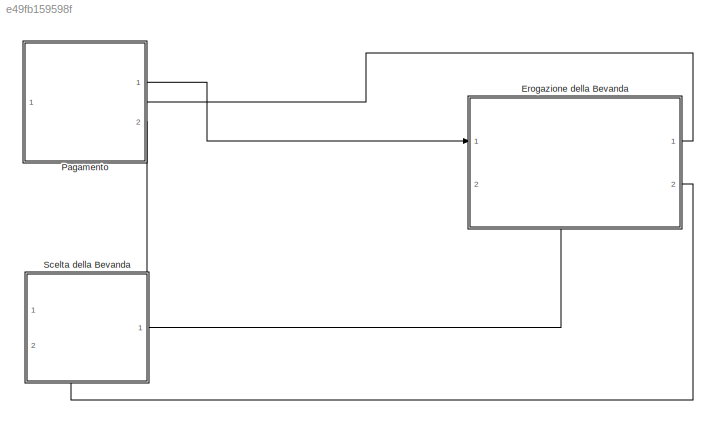
MODEL slx_e49fb159598f
KIND model
CONFIG AbsTol = auto
CONFIG EnableMultiTasking = off
CONFIG FixedStep = auto
CONFIG MaxStep = auto
CONFIG MinStep = auto
CONFIG RelTol = 1e-3
CONFIG SampleTimeConstraint = Unconstrained
CONFIG Solver = VariableStepAuto
CONFIG SolverName = VariableStepAuto
CONFIG StartTime = 0.0
CONFIG StopTime = 10.0
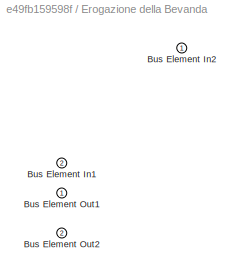
BLOCK [SubSystem] Erogazione della Bevanda
  PortSchema = {"entries":[{"content":{"headerSize":26,"margin":15,"minimumSpacing":25,"sides":[{"content":{"connectorIds":["In1"]},"type":"ConnectorPlacement.EquallySpacedRectSide","uuid":"9001291f-2c01-497d-b978-c9da1a5dfe2f"},{"content":{"connectorIds":["Out1","Out2"],"side":"RIGHT"},"type":"ConnectorPlacement.EquallySpacedRectSide","uuid":"e239534c-f548-484c-979d-c6062b0b6a09"},{"content":{"connectorIds":[],...<+451ch>
  Ports = [2, 2]
  RequestExecContextInheritance = off
BLOCK [Inport] Erogazione della Bevanda/Bus Element In1
  IconDisplay = Port number
  Port = 2
BLOCK [Inport] Erogazione della Bevanda/Bus Element In2
  IconDisplay = Port number
BLOCK [Outport] Erogazione della Bevanda/Bus Element Out1
  IconDisplay = Port number
BLOCK [Outport] Erogazione della Bevanda/Bus Element Out2
  IconDisplay = Port number
  Port = 2
BLOCK [ModelReference] Pagamento
  ModelNameDialog = Pagamento
  ModelReferenceVersion = 1.1
  PortSchema = {"entries":[{"content":{"headerSize":38,"margin":15,"minimumSpacing":25,"sides":[{"content":{"connectorIds":[]},"type":"ConnectorPlacement.EquallySpacedRectSide","uuid":"9001291f-2c01-497d-b978-c9da1a5dfe2f"},{"content":{"connectorIds":["In1","Out1","Out2"],"side":"RIGHT"},"type":"ConnectorPlacement.EquallySpacedRectSide","uuid":"e239534c-f548-484c-979d-c6062b0b6a09"},{"content":{"connectorIds":[]...<+303ch>
  Ports = [1, 2]
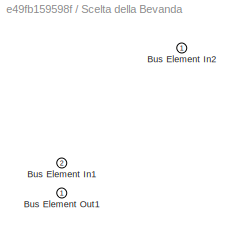
BLOCK [SubSystem] Scelta della Bevanda
  PortSchema = {"entries":[{"content":{"headerSize":26,"margin":15,"minimumSpacing":25,"sides":[{"content":{"connectorIds":[]},"type":"ConnectorPlacement.EquallySpacedRectSide","uuid":"9001291f-2c01-497d-b978-c9da1a5dfe2f"},{"content":{"connectorIds":["In2","Out1"],"side":"RIGHT"},"type":"ConnectorPlacement.EquallySpacedRectSide","uuid":"e239534c-f548-484c-979d-c6062b0b6a09"},{"content":{"connectorIds":[],"side"...<+445ch>
  Ports = [2, 1]
  RequestExecContextInheritance = off
BLOCK [Inport] Scelta della Bevanda/Bus Element In1
  IconDisplay = Port number
  Port = 2
BLOCK [Inport] Scelta della Bevanda/Bus Element In2
  IconDisplay = Port number
BLOCK [Outport] Scelta della Bevanda/Bus Element Out1
  IconDisplay = Port number
LINE Erogazione della Bevanda:1 -> Pagamento:1
LINE Erogazione della Bevanda:2 -> Scelta della Bevanda:1
LINE Pagamento:1 -> Erogazione della Bevanda:1
LINE Pagamento:2 -> Scelta della Bevanda:2
LINE Scelta della Bevanda:1 -> Erogazione della Bevanda:2
